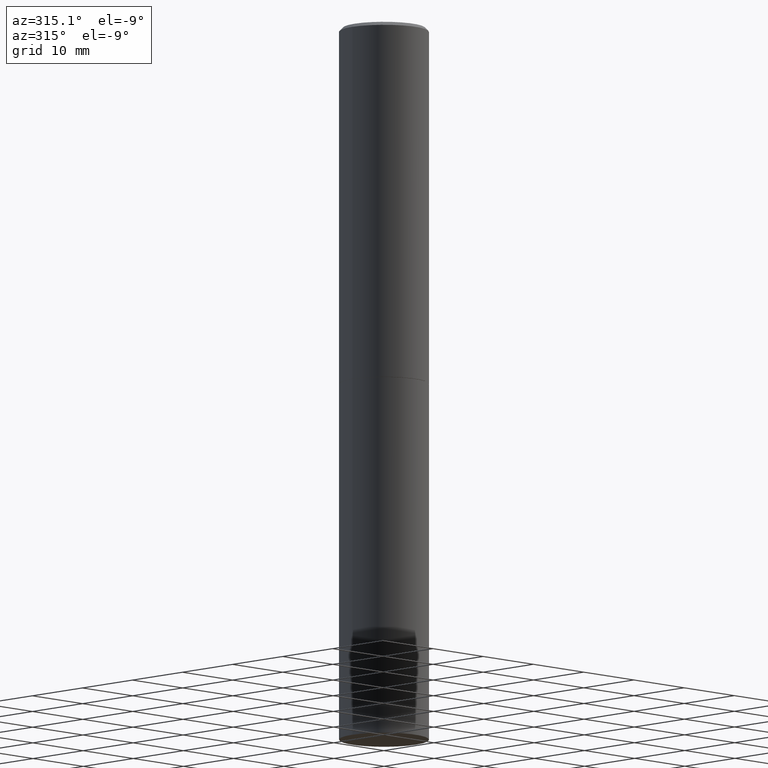
[diagram: clean part render]
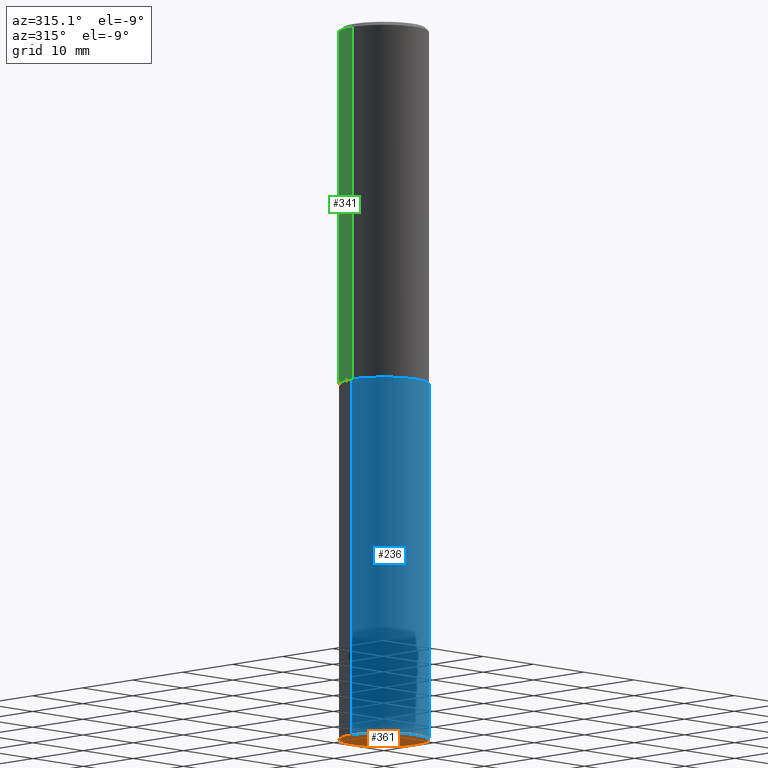
[diagram: same view with three faces highlighted in distinct colors, each labeled with its STEP entity id]
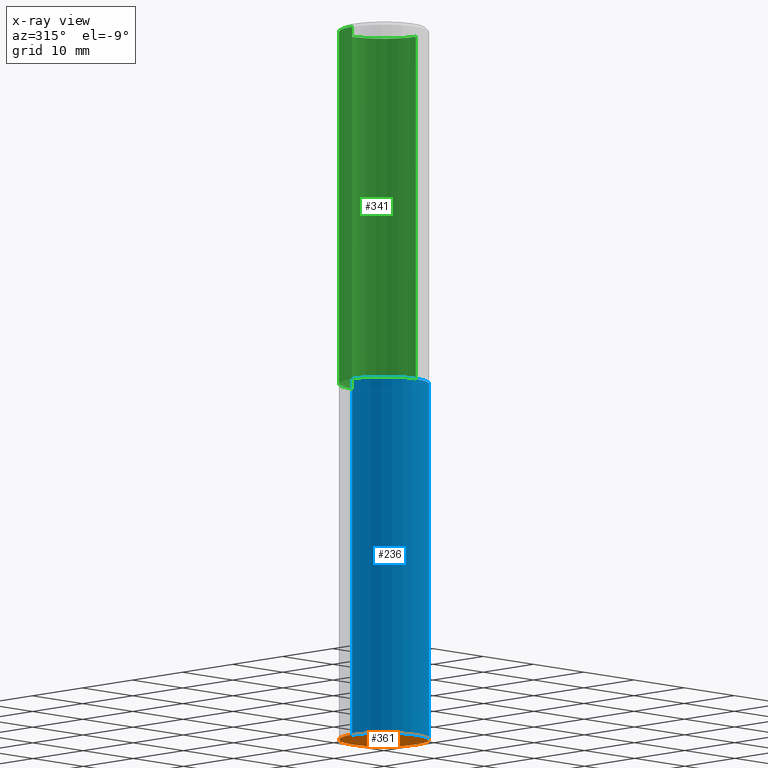
[diagram: x-ray of the same camera — body ghosted, the three highlighted faces saturated]
A machine part, auxiliary view with three faces highlighted in distinct colors.
The next image is the same camera in x-ray (body ghosted, the three faces saturated) — at least one of them is partly hidden behind the body in this view.
Their STEP definitions:

[orange] entity #361 — the highlighted planar face has unit normal (0, -0, -1).
#8 = DIRECTION ( 'NONE',  ( 2.438088387897960049E-29, -3.491481338843145188E-15, -1.000000000000000000 ) ) ;
#36 = DIRECTION ( 'NONE',  ( 1.000000000000000000, -6.982962677686270655E-15, 0.000000000000000000 ) ) ;
#58 = AXIS2_PLACEMENT_3D ( 'NONE', #285, #8, #221 ) ;
#67 = CIRCLE ( 'NONE', #187, 0.2500000000000000000 ) ;
#86 = CARTESIAN_POINT ( 'NONE',  ( 9.781875224740546387E-29, -1.396592535537258233E-14, -4.000000000000000000 ) ) ;
#87 = ORIENTED_EDGE ( 'NONE', *, *, #132, .F. ) ;
#116 = CARTESIAN_POINT ( 'NONE',  ( 0.2500000000000000000, -1.571166602479415059E-14, -4.000000000000000000 ) ) ;
#118 = ORIENTED_EDGE ( 'NONE', *, *, #175, .F. ) ;
#119 = DIRECTION ( 'NONE',  ( 1.000000000000000000, -6.982962677686270655E-15, 0.000000000000000000 ) ) ;
#132 = EDGE_CURVE ( 'NONE', #229, #346, #230, .T. ) ;
#134 = AXIS2_PLACEMENT_3D ( 'NONE', #86, #276, #36 ) ;
#175 = EDGE_CURVE ( 'NONE', #346, #229, #67, .T. ) ;
#187 = AXIS2_PLACEMENT_3D ( 'NONE', #337, #194, #119 ) ;
#194 = DIRECTION ( 'NONE',  ( -2.445468806185136597E-29, 3.491481338843145583E-15, 1.000000000000000000 ) ) ;
#221 = DIRECTION ( 'NONE',  ( -1.000000000000000000, 6.982962677686265922E-15, -4.876176775795935793E-29 ) ) ;
#229 = VERTEX_POINT ( 'NONE', #116 ) ;
#230 = CIRCLE ( 'NONE', #134, 0.2500000000000000000 ) ;
#276 = DIRECTION ( 'NONE',  ( -2.445468806185136597E-29, 3.491481338843145583E-15, 1.000000000000000000 ) ) ;
#280 = CARTESIAN_POINT ( 'NONE',  ( -0.2500000000000000000, -8.698087177129185889E-15, -4.000000000000000000 ) ) ;
#285 = CARTESIAN_POINT ( 'NONE',  ( 1.745740669421664299E-15, 0.2499999999999860389, -4.000000000000000888 ) ) ;
#295 = EDGE_LOOP ( 'NONE', ( #87, #118 ) ) ;
#304 = FACE_OUTER_BOUND ( 'NONE', #295, .T. ) ;
#337 = CARTESIAN_POINT ( 'NONE',  ( 9.781875224740546387E-29, -1.396592535537258233E-14, -4.000000000000000000 ) ) ;
#340 = PLANE ( 'NONE',  #58 ) ;
#346 = VERTEX_POINT ( 'NONE', #280 ) ;
#361 = ADVANCED_FACE ( 'NONE', ( #304 ), #340, .T. ) ;

[blue] entity #236 — the highlighted cylindrical surface (partial cylindrical patch) has radius 6.35 mm, axis along (-0, 0, 1).
#6 = EDGE_LOOP ( 'NONE', ( #323, #219, #32, #199 ) ) ;
#32 = ORIENTED_EDGE ( 'NONE', *, *, #47, .T. ) ;
#33 = CYLINDRICAL_SURFACE ( 'NONE', #71, 0.2500000000000000000 ) ;
#39 = DIRECTION ( 'NONE',  ( 1.000000000000000000, -6.982962677686266711E-15, 4.876176775795935793E-29 ) ) ;
#47 = EDGE_CURVE ( 'NONE', #229, #160, #51, .T. ) ;
#51 = LINE ( 'NONE', #159, #122 ) ;
#56 = DIRECTION ( 'NONE',  ( -2.445468806185136597E-29, 3.491481338843145583E-15, 1.000000000000000000 ) ) ;
#61 = LINE ( 'NONE', #210, #140 ) ;
#67 = CIRCLE ( 'NONE', #187, 0.2500000000000000000 ) ;
#71 = AXIS2_PLACEMENT_3D ( 'NONE', #270, #209, #39 ) ;
#93 = EDGE_CURVE ( 'NONE', #278, #160, #352, .T. ) ;
#116 = CARTESIAN_POINT ( 'NONE',  ( 0.2500000000000000000, -1.571166602479415059E-14, -4.000000000000000000 ) ) ;
#119 = DIRECTION ( 'NONE',  ( 1.000000000000000000, -6.982962677686270655E-15, 0.000000000000000000 ) ) ;
#122 = VECTOR ( 'NONE', #259, 39.37007874015748143 ) ;
#140 = VECTOR ( 'NONE', #328, 39.37007874015748143 ) ;
#159 = CARTESIAN_POINT ( 'NONE',  ( 0.2500000000000000000, -1.745740669421566678E-15, 1.219044193948983948E-29 ) ) ;
#160 = VERTEX_POINT ( 'NONE', #359 ) ;
#163 = DIRECTION ( 'NONE',  ( 1.000000000000000000, -6.982962677686266711E-15, 0.000000000000000000 ) ) ;
#175 = EDGE_CURVE ( 'NONE', #346, #229, #67, .T. ) ;
#187 = AXIS2_PLACEMENT_3D ( 'NONE', #337, #194, #119 ) ;
#194 = DIRECTION ( 'NONE',  ( -2.445468806185136597E-29, 3.491481338843145583E-15, 1.000000000000000000 ) ) ;
#199 = ORIENTED_EDGE ( 'NONE', *, *, #93, .F. ) ;
#209 = DIRECTION ( 'NONE',  ( -2.445468806185136597E-29, 3.491481338843145583E-15, 1.000000000000000000 ) ) ;
#210 = CARTESIAN_POINT ( 'NONE',  ( -0.2500000000000000000, 1.776356839400250465E-15, -1.229733772563726445E-29 ) ) ;
#219 = ORIENTED_EDGE ( 'NONE', *, *, #175, .T. ) ;
#229 = VERTEX_POINT ( 'NONE', #116 ) ;
#236 = ADVANCED_FACE ( 'NONE', ( #306 ), #33, .T. ) ;
#238 = AXIS2_PLACEMENT_3D ( 'NONE', #294, #56, #163 ) ;
#242 = CARTESIAN_POINT ( 'NONE',  ( -0.2500000000000000000, -8.698087177129185889E-15, -2.000000000000000000 ) ) ;
#259 = DIRECTION ( 'NONE',  ( -2.445468806185136877E-29, 3.491481338843145188E-15, 1.000000000000000000 ) ) ;
#270 = CARTESIAN_POINT ( 'NONE',  ( 0.000000000000000000, 0.000000000000000000, 0.000000000000000000 ) ) ;
#278 = VERTEX_POINT ( 'NONE', #242 ) ;
#280 = CARTESIAN_POINT ( 'NONE',  ( -0.2500000000000000000, -8.698087177129185889E-15, -4.000000000000000000 ) ) ;
#294 = CARTESIAN_POINT ( 'NONE',  ( 4.890937612370273194E-29, -6.982962677686291165E-15, -2.000000000000000000 ) ) ;
#306 = FACE_OUTER_BOUND ( 'NONE', #6, .T. ) ;
#318 = EDGE_CURVE ( 'NONE', #346, #278, #61, .T. ) ;
#323 = ORIENTED_EDGE ( 'NONE', *, *, #318, .F. ) ;
#328 = DIRECTION ( 'NONE',  ( -2.445468806185136877E-29, 3.491481338843145188E-15, 1.000000000000000000 ) ) ;
#337 = CARTESIAN_POINT ( 'NONE',  ( 9.781875224740546387E-29, -1.396592535537258233E-14, -4.000000000000000000 ) ) ;
#346 = VERTEX_POINT ( 'NONE', #280 ) ;
#352 = CIRCLE ( 'NONE', #238, 0.2500000000000000000 ) ;
#359 = CARTESIAN_POINT ( 'NONE',  ( 0.2500000000000000000, -8.728703347107857054E-15, -2.000000000000000000 ) ) ;

[green] entity #341 — the highlighted cylindrical surface (partial cylindrical patch) has radius 6.35 mm, axis along (-0, 0, 1).
#3 = AXIS2_PLACEMENT_3D ( 'NONE', #249, #121, #339 ) ;
#5 = CARTESIAN_POINT ( 'NONE',  ( 0.2499999999999998890, -1.745740669421565889E-15, 1.219044193948983388E-29 ) ) ;
#12 = VERTEX_POINT ( 'NONE', #263 ) ;
#14 = ORIENTED_EDGE ( 'NONE', *, *, #228, .T. ) ;
#25 = EDGE_CURVE ( 'NONE', #12, #246, #107, .T. ) ;
#26 = CARTESIAN_POINT ( 'NONE',  ( 0.2500000000000000000, -8.725211865769014047E-15, -1.998999999999999888 ) ) ;
#38 = LINE ( 'NONE', #5, #345 ) ;
#66 = EDGE_CURVE ( 'NONE', #115, #246, #90, .T. ) ;
#75 = CIRCLE ( 'NONE', #153, 0.2500000000000000000 ) ;
#76 = CARTESIAN_POINT ( 'NONE',  ( -0.2499999999999998890, 1.776356839400249676E-15, -1.229733772563726025E-29 ) ) ;
#90 = CIRCLE ( 'NONE', #338, 0.2499999999999998057 ) ;
#98 = VERTEX_POINT ( 'NONE', #26 ) ;
#103 = DIRECTION ( 'NONE',  ( 1.000000000000000000, -6.982962677686266711E-15, 0.000000000000000000 ) ) ;
#107 = LINE ( 'NONE', #76, #312 ) ;
#115 = VERTEX_POINT ( 'NONE', #363 ) ;
#121 = DIRECTION ( 'NONE',  ( -2.445468806185136597E-29, 3.491481338843145583E-15, 1.000000000000000000 ) ) ;
#147 = DIRECTION ( 'NONE',  ( -2.445468806185136877E-29, 3.491481338843145188E-15, 1.000000000000000000 ) ) ;
#148 = FACE_OUTER_BOUND ( 'NONE', #365, .T. ) ;
#153 = AXIS2_PLACEMENT_3D ( 'NONE', #267, #173, #247 ) ;
#173 = DIRECTION ( 'NONE',  ( -2.445468806185136597E-29, 3.491481338843145583E-15, 1.000000000000000000 ) ) ;
#183 = DIRECTION ( 'NONE',  ( -2.445468806185136877E-29, 3.491481338843145188E-15, 1.000000000000000000 ) ) ;
#203 = ORIENTED_EDGE ( 'NONE', *, *, #347, .F. ) ;
#228 = EDGE_CURVE ( 'NONE', #98, #12, #75, .T. ) ;
#233 = CARTESIAN_POINT ( 'NONE',  ( 4.890937612370285420E-31, -6.982962677686308865E-17, -0.02000000000000005246 ) ) ;
#246 = VERTEX_POINT ( 'NONE', #296 ) ;
#247 = DIRECTION ( 'NONE',  ( 1.000000000000000000, -6.982962677686266711E-15, 0.000000000000000000 ) ) ;
#249 = CARTESIAN_POINT ( 'NONE',  ( 0.000000000000000000, 0.000000000000000000, 0.000000000000000000 ) ) ;
#263 = CARTESIAN_POINT ( 'NONE',  ( -0.2500000000000000000, -1.748293572161903489E-15, -1.998999999999999888 ) ) ;
#264 = ORIENTED_EDGE ( 'NONE', *, *, #25, .T. ) ;
#267 = CARTESIAN_POINT ( 'NONE',  ( 4.888492143564087591E-29, -6.979471196347447369E-15, -1.998999999999999888 ) ) ;
#296 = CARTESIAN_POINT ( 'NONE',  ( -0.2499999999999998057, 1.675911042644702196E-15, -0.02000000000000005246 ) ) ;
#312 = VECTOR ( 'NONE', #183, 39.37007874015748143 ) ;
#317 = CYLINDRICAL_SURFACE ( 'NONE', #3, 0.2499999999999998890 ) ;
#324 = ORIENTED_EDGE ( 'NONE', *, *, #66, .F. ) ;
#338 = AXIS2_PLACEMENT_3D ( 'NONE', #233, #350, #103 ) ;
#339 = DIRECTION ( 'NONE',  ( 1.000000000000000000, -6.982962677686266711E-15, 4.876176775795935793E-29 ) ) ;
#341 = ADVANCED_FACE ( 'NONE', ( #148 ), #317, .T. ) ;
#345 = VECTOR ( 'NONE', #147, 39.37007874015748143 ) ;
#347 = EDGE_CURVE ( 'NONE', #98, #115, #38, .T. ) ;
#350 = DIRECTION ( 'NONE',  ( -2.445468806185136597E-29, 3.491481338843145583E-15, 1.000000000000000000 ) ) ;
#363 = CARTESIAN_POINT ( 'NONE',  ( 0.2499999999999998057, -1.784954126219744611E-15, -0.02000000000000005246 ) ) ;
#365 = EDGE_LOOP ( 'NONE', ( #14, #264, #324, #203 ) ) ;